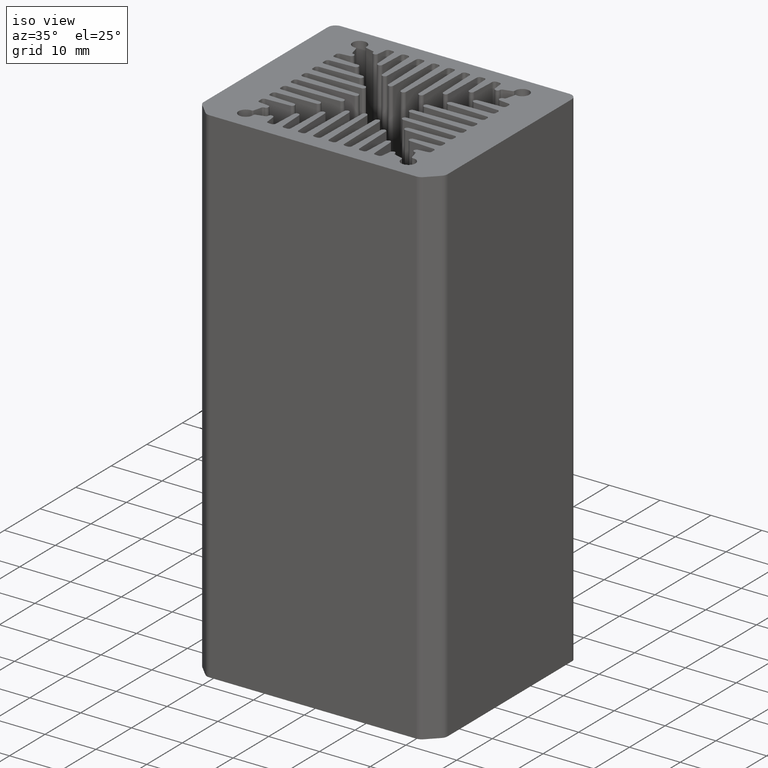
[diagram: clean part render]
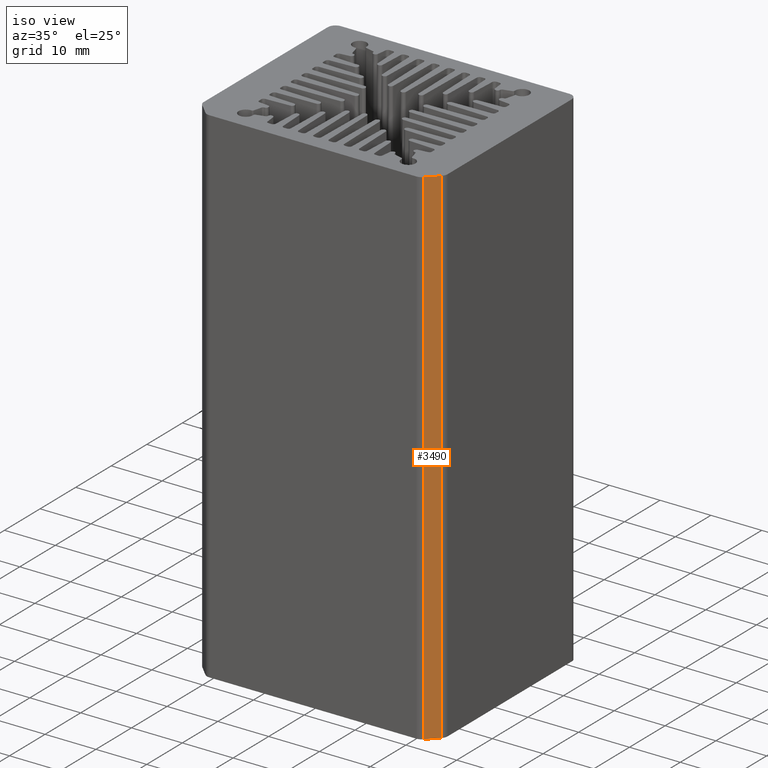
[diagram: same view with one face highlighted and labeled with its STEP entity id]
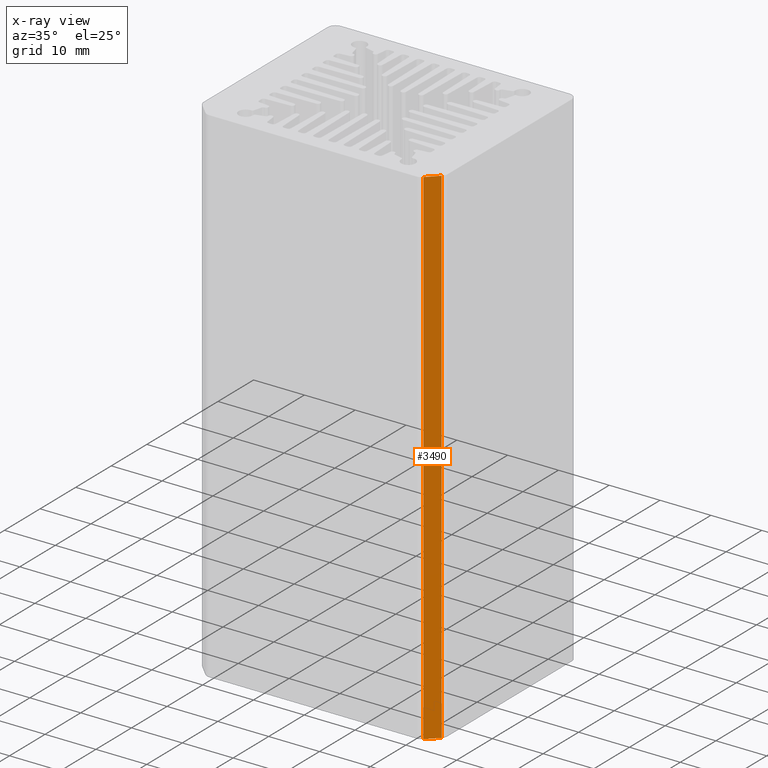
[diagram: x-ray of the same camera — body ghosted, the highlighted face saturated]
A machine part, iso view. The second image highlights one B-rep face of the part: STEP entity #3490.
The next image is the same camera in x-ray: the body ghosted, the highlighted face saturated — about 0% of this face is hidden behind the body in this view.
In plain terms, the highlighted planar face has unit normal (-0.7071, 0.7071, 0).
Its self-contained STEP definition (entity closure, byte-faithful):
#219 = PLANE ( 'NONE',  #8263 ) ;
#595 = DIRECTION ( 'NONE',  ( 0.7071066792224548481, 0.7071068831506255314, 0.000000000000000000 ) ) ;
#664 = VERTEX_POINT ( 'NONE', #3364 ) ;
#735 = LINE ( 'NONE', #1466, #4012 ) ;
#1229 = ORIENTED_EDGE ( 'NONE', *, *, #1986, .T. ) ;
#1466 = CARTESIAN_POINT ( 'NONE',  ( 543.2353138342267584, 690.2941641864753137, 100.0000000000000000 ) ) ;
#1986 = EDGE_CURVE ( 'NONE', #8221, #7806, #8891, .T. ) ;
#2124 = DIRECTION ( 'NONE',  ( -0.000000000000000000, -0.000000000000000000, -1.000000000000000000 ) ) ;
#2254 = EDGE_LOOP ( 'NONE', ( #6609, #7276, #7556, #1229 ) ) ;
#2628 = LINE ( 'NONE', #8777, #6929 ) ;
#2860 = CARTESIAN_POINT ( 'NONE',  ( 545.3566338710336368, 692.4154848350666498, 100.0000000000000000 ) ) ;
#3108 = CARTESIAN_POINT ( 'NONE',  ( 543.2353138342267584, 690.2941641864753137, 100.0000000000000000 ) ) ;
#3355 = CARTESIAN_POINT ( 'NONE',  ( 543.2353138342267584, 690.2941641864753137, 100.0000000000000000 ) ) ;
#3364 = CARTESIAN_POINT ( 'NONE',  ( 545.3566338710336368, 692.4154848350666498, 0.000000000000000000 ) ) ;
#3490 = ADVANCED_FACE ( 'NONE', ( #5008 ), #219, .F. ) ;
#3590 = CARTESIAN_POINT ( 'NONE',  ( 543.2353138342267584, 690.2941641864753137, 0.000000000000000000 ) ) ;
#4012 = VECTOR ( 'NONE', #595, 1000.000000000000114 ) ;
#4845 = VERTEX_POINT ( 'NONE', #2860 ) ;
#5008 = FACE_OUTER_BOUND ( 'NONE', #2254, .T. ) ;
#5325 = EDGE_CURVE ( 'NONE', #4845, #664, #5607, .T. ) ;
#5607 = LINE ( 'NONE', #8400, #6986 ) ;
#6135 = CARTESIAN_POINT ( 'NONE',  ( 543.2353138342267584, 690.2941641864753137, 100.0000000000000000 ) ) ;
#6177 = DIRECTION ( 'NONE',  ( -0.000000000000000000, -0.000000000000000000, -1.000000000000000000 ) ) ;
#6609 = ORIENTED_EDGE ( 'NONE', *, *, #6780, .T. ) ;
#6780 = EDGE_CURVE ( 'NONE', #7806, #664, #2628, .T. ) ;
#6815 = EDGE_CURVE ( 'NONE', #8221, #4845, #735, .T. ) ;
#6929 = VECTOR ( 'NONE', #7492, 1000.000000000000114 ) ;
#6986 = VECTOR ( 'NONE', #2124, 1000.000000000000000 ) ;
#7276 = ORIENTED_EDGE ( 'NONE', *, *, #5325, .F. ) ;
#7492 = DIRECTION ( 'NONE',  ( 0.7071066792224548481, 0.7071068831506255314, 0.000000000000000000 ) ) ;
#7556 = ORIENTED_EDGE ( 'NONE', *, *, #6815, .F. ) ;
#7806 = VERTEX_POINT ( 'NONE', #3590 ) ;
#8071 = VECTOR ( 'NONE', #6177, 1000.000000000000000 ) ;
#8221 = VERTEX_POINT ( 'NONE', #3355 ) ;
#8263 = AXIS2_PLACEMENT_3D ( 'NONE', #3108, #8620, #8664 ) ;
#8400 = CARTESIAN_POINT ( 'NONE',  ( 545.3566338710336368, 692.4154848350666498, 100.0000000000000000 ) ) ;
#8620 = DIRECTION ( 'NONE',  ( -0.7071068831506255314, 0.7071066792224548481, 0.000000000000000000 ) ) ;
#8664 = DIRECTION ( 'NONE',  ( -0.7071066792224548481, -0.7071068831506255314, 0.000000000000000000 ) ) ;
#8777 = CARTESIAN_POINT ( 'NONE',  ( 543.2353138342267584, 690.2941641864753137, 0.000000000000000000 ) ) ;
#8891 = LINE ( 'NONE', #6135, #8071 ) ;